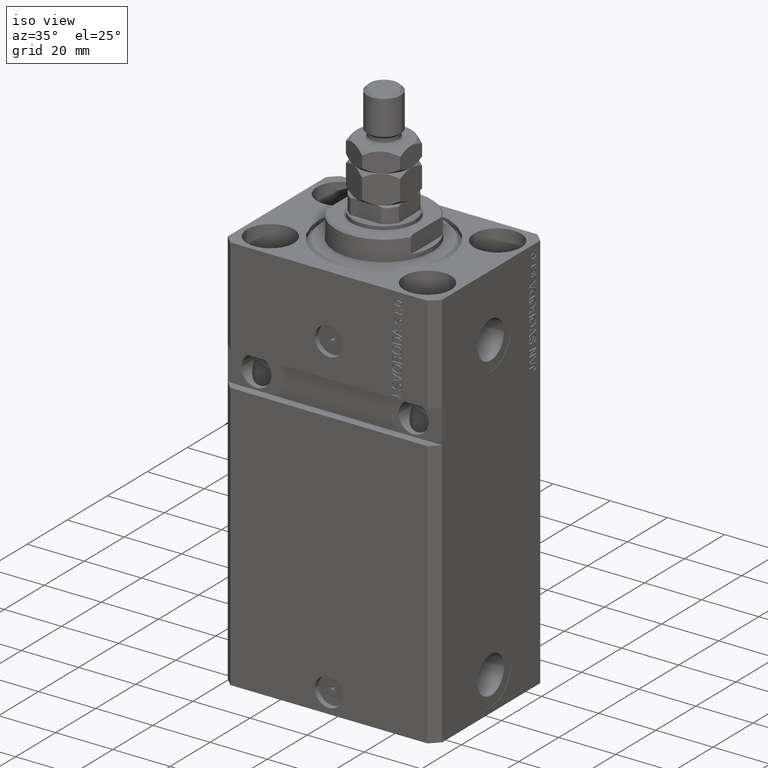
[diagram: clean part render]
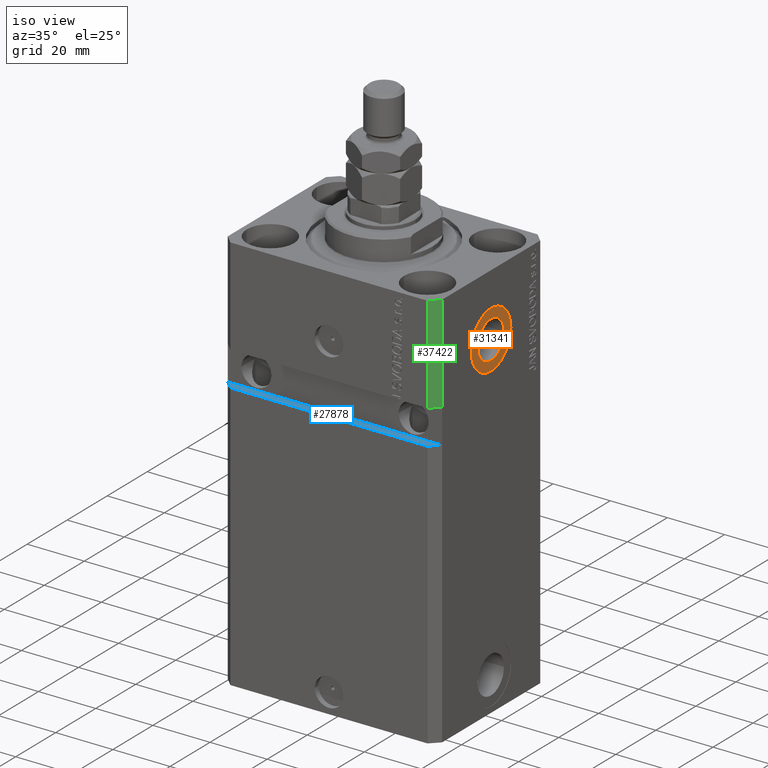
[diagram: same view with three faces highlighted in distinct colors, each labeled with its STEP entity id]
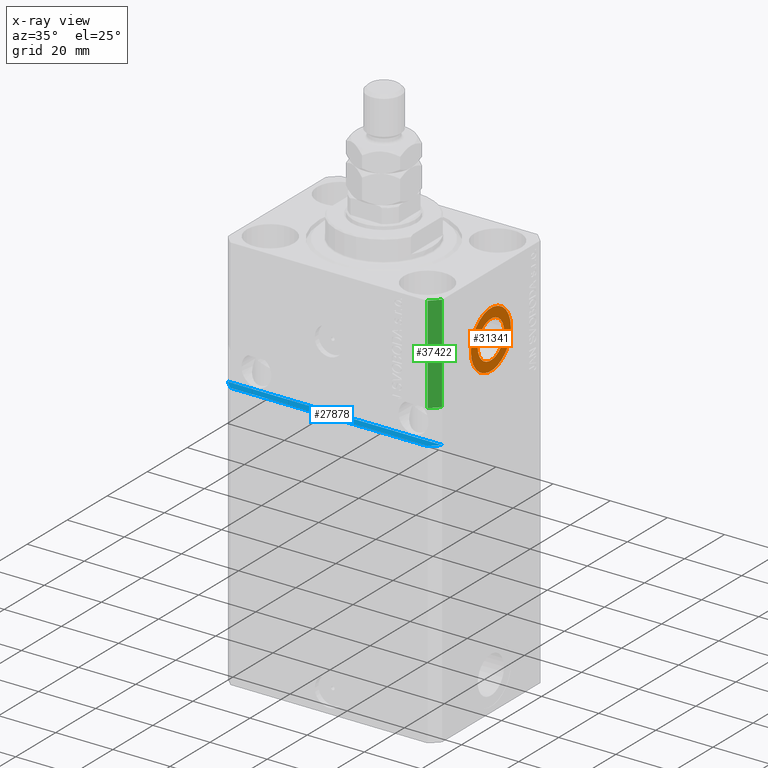
[diagram: x-ray of the same camera — body ghosted, the three highlighted faces saturated]
A machine part, iso view with three faces highlighted in distinct colors.
The next image is the same camera in x-ray (body ghosted, the three faces saturated) — at least one of them is partly hidden behind the body in this view.
Their STEP definitions:

[orange] entity #31341 — the highlighted planar face has unit normal (1, -0, 0).
#1024 = EDGE_CURVE ( 'NONE', #33156, #37301, #13532, .T. ) ;
#1061 = EDGE_LOOP ( 'NONE', ( #26102, #29548 ) ) ;
#1890 = DIRECTION ( 'NONE',  ( 1.318389841742373392E-14, 1.000000000000000000, 0.000000000000000000 ) ) ;
#1961 = EDGE_CURVE ( 'NONE', #6589, #33091, #22415, .T. ) ;
#1975 = EDGE_LOOP ( 'NONE', ( #13583, #17991 ) ) ;
#3079 = CARTESIAN_POINT ( 'NONE',  ( 37.40000000000011937, -10.00000000000040323, -22.00000000000000000 ) ) ;
#5205 = EDGE_CURVE ( 'NONE', #33091, #6589, #44510, .T. ) ;
#5473 = DIRECTION ( 'NONE',  ( 1.370906090437597808E-14, 1.000000000000000000, 0.000000000000000000 ) ) ;
#6435 = CARTESIAN_POINT ( 'NONE',  ( 37.40000000000038227, 9.999999999999598543, -22.00000000000000000 ) ) ;
#6589 = VERTEX_POINT ( 'NONE', #39903 ) ;
#9298 = DIRECTION ( 'NONE',  ( 1.334402673828349134E-14, 1.000000000000000000, 0.000000000000000000 ) ) ;
#10597 = DIRECTION ( 'NONE',  ( 1.370906090437597808E-14, 1.000000000000000000, 0.000000000000000000 ) ) ;
#13532 = CIRCLE ( 'NONE', #29721, 10.00000000000000000 ) ;
#13583 = ORIENTED_EDGE ( 'NONE', *, *, #1024, .T. ) ;
#14288 = DIRECTION ( 'NONE',  ( 1.000000000000000000, -1.334402673828349134E-14, 0.000000000000000000 ) ) ;
#15915 = CARTESIAN_POINT ( 'NONE',  ( 37.40000000000016200, -6.580000000000500116, -22.00000000000000000 ) ) ;
#17991 = ORIENTED_EDGE ( 'NONE', *, *, #38371, .T. ) ;
#19451 = DIRECTION ( 'NONE',  ( 1.000000000000000000, -1.334402673828349134E-14, 0.000000000000000000 ) ) ;
#20196 = AXIS2_PLACEMENT_3D ( 'NONE', #28338, #14288, #10597 ) ;
#20359 = FACE_OUTER_BOUND ( 'NONE', #1975, .T. ) ;
#22415 = CIRCLE ( 'NONE', #41574, 6.580000000000002736 ) ;
#23687 = DIRECTION ( 'NONE',  ( 1.318389841742373392E-14, 1.000000000000000000, 0.000000000000000000 ) ) ;
#26102 = ORIENTED_EDGE ( 'NONE', *, *, #1961, .F. ) ;
#27144 = CARTESIAN_POINT ( 'NONE',  ( 37.40000000000025437, -4.022543243901666471E-13, -22.00000000000000000 ) ) ;
#28338 = CARTESIAN_POINT ( 'NONE',  ( 37.40000000000025437, -4.990666000118059729E-13, -22.00000000000000000 ) ) ;
#29548 = ORIENTED_EDGE ( 'NONE', *, *, #5205, .F. ) ;
#29588 = CARTESIAN_POINT ( 'NONE',  ( 37.40000000000025437, -4.022543243901666471E-13, -22.00000000000000000 ) ) ;
#29721 = AXIS2_PLACEMENT_3D ( 'NONE', #27144, #41236, #23687 ) ;
#31341 = ADVANCED_FACE ( 'NONE', ( #40222, #20359 ), #37877, .T. ) ;
#33091 = VERTEX_POINT ( 'NONE', #15915 ) ;
#33156 = VERTEX_POINT ( 'NONE', #6435 ) ;
#34141 = CIRCLE ( 'NONE', #37797, 10.00000000000000000 ) ;
#34417 = CARTESIAN_POINT ( 'NONE',  ( 37.40000000000025437, -4.022543243901666471E-13, -22.00000000000000000 ) ) ;
#37301 = VERTEX_POINT ( 'NONE', #3079 ) ;
#37759 = CARTESIAN_POINT ( 'NONE',  ( 37.40000000000025437, -4.990666000118059729E-13, -22.00000000000000000 ) ) ;
#37797 = AXIS2_PLACEMENT_3D ( 'NONE', #29588, #43704, #1890 ) ;
#37877 = PLANE ( 'NONE',  #45102 ) ;
#38371 = EDGE_CURVE ( 'NONE', #37301, #33156, #34141, .T. ) ;
#39903 = CARTESIAN_POINT ( 'NONE',  ( 37.40000000000033964, 6.579999999999503579, -22.00000000000000000 ) ) ;
#40222 = FACE_BOUND ( 'NONE', #1061, .T. ) ;
#41236 = DIRECTION ( 'NONE',  ( 1.000000000000000000, -1.334402673828349134E-14, 0.000000000000000000 ) ) ;
#41574 = AXIS2_PLACEMENT_3D ( 'NONE', #37759, #44255, #5473 ) ;
#43704 = DIRECTION ( 'NONE',  ( 1.000000000000000000, -1.334402673828349134E-14, 0.000000000000000000 ) ) ;
#44255 = DIRECTION ( 'NONE',  ( 1.000000000000000000, -1.334402673828349134E-14, 0.000000000000000000 ) ) ;
#44510 = CIRCLE ( 'NONE', #20196, 6.580000000000002736 ) ;
#45102 = AXIS2_PLACEMENT_3D ( 'NONE', #34417, #19451, #9298 ) ;

[blue] entity #27878 — the highlighted planar face has unit normal (0, 0, -1).
#1186 = ORIENTED_EDGE ( 'NONE', *, *, #5425, .T. ) ;
#3605 = ORIENTED_EDGE ( 'NONE', *, *, #21217, .T. ) ;
#3985 = CARTESIAN_POINT ( 'NONE',  ( -37.50000000000000000, -24.50000000000000000, -46.00000000000000000 ) ) ;
#5425 = EDGE_CURVE ( 'NONE', #9821, #24968, #9259, .T. ) ;
#5714 = PLANE ( 'NONE',  #33951 ) ;
#5782 = DIRECTION ( 'NONE',  ( 0.7071067811865474617, 0.7071067811865474617, 6.542051911182397555E-17 ) ) ;
#9123 = VECTOR ( 'NONE', #5782, 1000.000000000000114 ) ;
#9259 = LINE ( 'NONE', #37382, #9123 ) ;
#9821 = VERTEX_POINT ( 'NONE', #32052 ) ;
#13421 = DIRECTION ( 'NONE',  ( 0.7071067811865483499, -0.7071067811865466846, 6.542051911182404951E-17 ) ) ;
#14904 = VECTOR ( 'NONE', #30496, 1000.000000000000000 ) ;
#17307 = VERTEX_POINT ( 'NONE', #3985 ) ;
#17532 = EDGE_LOOP ( 'NONE', ( #1186, #26549, #37616, #3605 ) ) ;
#18898 = DIRECTION ( 'NONE',  ( 9.251858538542972814E-17, 1.088096013778228463E-32, -1.000000000000000000 ) ) ;
#20266 = CARTESIAN_POINT ( 'NONE',  ( -37.50000000000000000, -27.50000000000000000, -46.00000000000000000 ) ) ;
#20712 = DIRECTION ( 'NONE',  ( 1.000000000000000000, 9.251858538542972814E-17, 9.251858538542972814E-17 ) ) ;
#21217 = EDGE_CURVE ( 'NONE', #42597, #9821, #34089, .T. ) ;
#23256 = FACE_OUTER_BOUND ( 'NONE', #17532, .T. ) ;
#24968 = VERTEX_POINT ( 'NONE', #28378 ) ;
#25641 = EDGE_CURVE ( 'NONE', #17307, #42597, #30949, .T. ) ;
#26549 = ORIENTED_EDGE ( 'NONE', *, *, #30514, .F. ) ;
#26797 = CARTESIAN_POINT ( 'NONE',  ( -37.50000000000000000, -24.49999999999999645, -46.00000000000000000 ) ) ;
#26971 = CARTESIAN_POINT ( 'NONE',  ( -34.49999999999998579, -27.50000000000000000, -46.00000000000000000 ) ) ;
#27251 = CARTESIAN_POINT ( 'NONE',  ( -37.50000000000000000, -24.50000000000000000, -46.00000000000000000 ) ) ;
#27878 = ADVANCED_FACE ( 'NONE', ( #23256 ), #5714, .F. ) ;
#28378 = CARTESIAN_POINT ( 'NONE',  ( 37.49999999999999289, -24.49999999999999289, -45.99999999999999289 ) ) ;
#30496 = DIRECTION ( 'NONE',  ( 1.000000000000000000, 9.251858538542972814E-17, 9.251858538542972814E-17 ) ) ;
#30514 = EDGE_CURVE ( 'NONE', #17307, #24968, #37179, .T. ) ;
#30949 = LINE ( 'NONE', #26797, #33136 ) ;
#32052 = CARTESIAN_POINT ( 'NONE',  ( 34.49999999999999289, -27.49999999999999289, -45.99999999999999289 ) ) ;
#32289 = VECTOR ( 'NONE', #20712, 1000.000000000000000 ) ;
#33136 = VECTOR ( 'NONE', #13421, 1000.000000000000114 ) ;
#33951 = AXIS2_PLACEMENT_3D ( 'NONE', #43595, #18898, #39889 ) ;
#34089 = LINE ( 'NONE', #20266, #32289 ) ;
#37179 = LINE ( 'NONE', #27251, #14904 ) ;
#37382 = CARTESIAN_POINT ( 'NONE',  ( 34.49999999999998579, -27.50000000000000000, -46.00000000000000000 ) ) ;
#37616 = ORIENTED_EDGE ( 'NONE', *, *, #25641, .T. ) ;
#39889 = DIRECTION ( 'NONE',  ( -1.000000000000000000, 0.000000000000000000, -9.251858538542972814E-17 ) ) ;
#42597 = VERTEX_POINT ( 'NONE', #26971 ) ;
#43595 = CARTESIAN_POINT ( 'NONE',  ( -37.50000000000000000, -24.50000000000000000, -46.00000000000000000 ) ) ;

[green] entity #37422 — the highlighted planar face has unit normal (0.7071, -0.7071, 0).
#31 = DIRECTION ( 'NONE',  ( 0.000000000000000000, 0.000000000000000000, 1.000000000000000000 ) ) ;
#508 = CARTESIAN_POINT ( 'NONE',  ( 34.49999999999998579, -27.50000000000000000, -34.00000000000000000 ) ) ;
#1196 = CARTESIAN_POINT ( 'NONE',  ( 34.49999999999999289, -27.49999999999999645, 0.000000000000000000 ) ) ;
#2966 = PLANE ( 'NONE',  #18648 ) ;
#5926 = VERTEX_POINT ( 'NONE', #18622 ) ;
#6799 = DIRECTION ( 'NONE',  ( 0.000000000000000000, 0.000000000000000000, 1.000000000000000000 ) ) ;
#10135 = FACE_OUTER_BOUND ( 'NONE', #14203, .T. ) ;
#11138 = LINE ( 'NONE', #28650, #26975 ) ;
#11560 = CARTESIAN_POINT ( 'NONE',  ( 34.49999999999999289, -27.49999999999999289, -33.99999999999999289 ) ) ;
#12912 = CARTESIAN_POINT ( 'NONE',  ( 34.49999999999999289, -27.49999999999999645, -140.0000000000000000 ) ) ;
#12925 = EDGE_CURVE ( 'NONE', #36505, #5926, #11138, .T. ) ;
#14203 = EDGE_LOOP ( 'NONE', ( #17607, #32534, #36262, #30814 ) ) ;
#14485 = EDGE_CURVE ( 'NONE', #42654, #36505, #22438, .T. ) ;
#14642 = VECTOR ( 'NONE', #27564, 1000.000000000000114 ) ;
#17189 = LINE ( 'NONE', #41426, #24906 ) ;
#17607 = ORIENTED_EDGE ( 'NONE', *, *, #14485, .F. ) ;
#18622 = CARTESIAN_POINT ( 'NONE',  ( 34.49999999999999289, -27.49999999999999645, 0.000000000000000000 ) ) ;
#18648 = AXIS2_PLACEMENT_3D ( 'NONE', #12912, #23751, #23524 ) ;
#21413 = EDGE_CURVE ( 'NONE', #42654, #35056, #17189, .T. ) ;
#22438 = LINE ( 'NONE', #508, #33660 ) ;
#22876 = EDGE_CURVE ( 'NONE', #5926, #35056, #35185, .T. ) ;
#23524 = DIRECTION ( 'NONE',  ( 0.7071067811865474617, 0.7071067811865474617, 0.000000000000000000 ) ) ;
#23751 = DIRECTION ( 'NONE',  ( 0.7071067811865475727, -0.7071067811865475727, 0.000000000000000000 ) ) ;
#24906 = VECTOR ( 'NONE', #6799, 1000.000000000000000 ) ;
#26975 = VECTOR ( 'NONE', #31, 1000.000000000000000 ) ;
#27564 = DIRECTION ( 'NONE',  ( 0.7071067811865474617, 0.7071067811865474617, 0.000000000000000000 ) ) ;
#28420 = DIRECTION ( 'NONE',  ( -0.7071067811865474617, -0.7071067811865474617, -6.542051911182397555E-17 ) ) ;
#28650 = CARTESIAN_POINT ( 'NONE',  ( 34.49999999999999289, -27.49999999999999645, -140.0000000000000000 ) ) ;
#30814 = ORIENTED_EDGE ( 'NONE', *, *, #12925, .F. ) ;
#32534 = ORIENTED_EDGE ( 'NONE', *, *, #21413, .T. ) ;
#33660 = VECTOR ( 'NONE', #28420, 1000.000000000000114 ) ;
#35056 = VERTEX_POINT ( 'NONE', #37656 ) ;
#35185 = LINE ( 'NONE', #1196, #14642 ) ;
#36262 = ORIENTED_EDGE ( 'NONE', *, *, #22876, .F. ) ;
#36505 = VERTEX_POINT ( 'NONE', #11560 ) ;
#37422 = ADVANCED_FACE ( 'NONE', ( #10135 ), #2966, .T. ) ;
#37583 = CARTESIAN_POINT ( 'NONE',  ( 37.49999999999999289, -24.49999999999999289, -33.99999999999999289 ) ) ;
#37656 = CARTESIAN_POINT ( 'NONE',  ( 37.49999999999999289, -24.50000000000000000, 0.000000000000000000 ) ) ;
#41426 = CARTESIAN_POINT ( 'NONE',  ( 37.49999999999999289, -24.50000000000000000, -140.0000000000000000 ) ) ;
#42654 = VERTEX_POINT ( 'NONE', #37583 ) ;